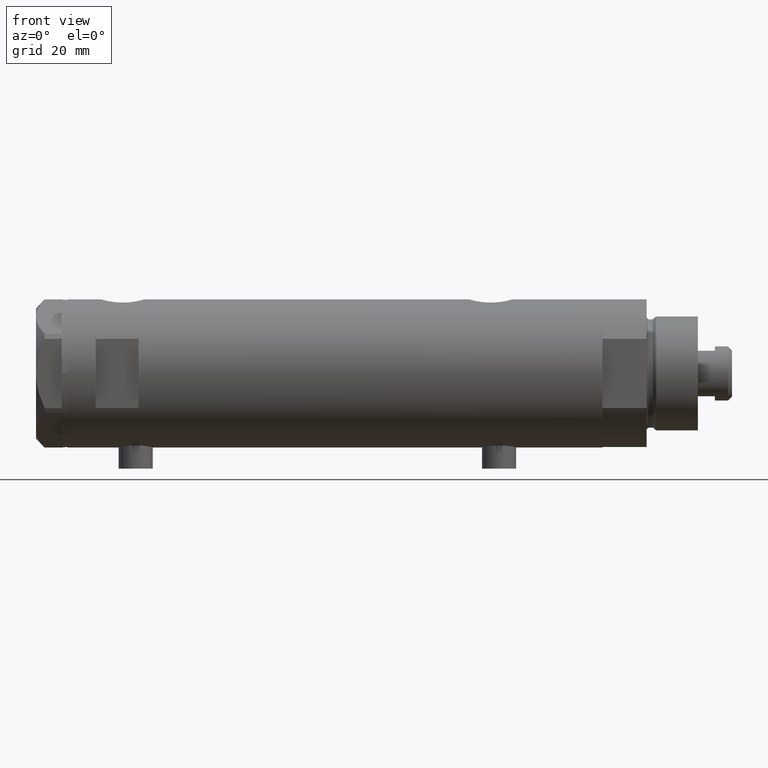
[diagram: clean part render]
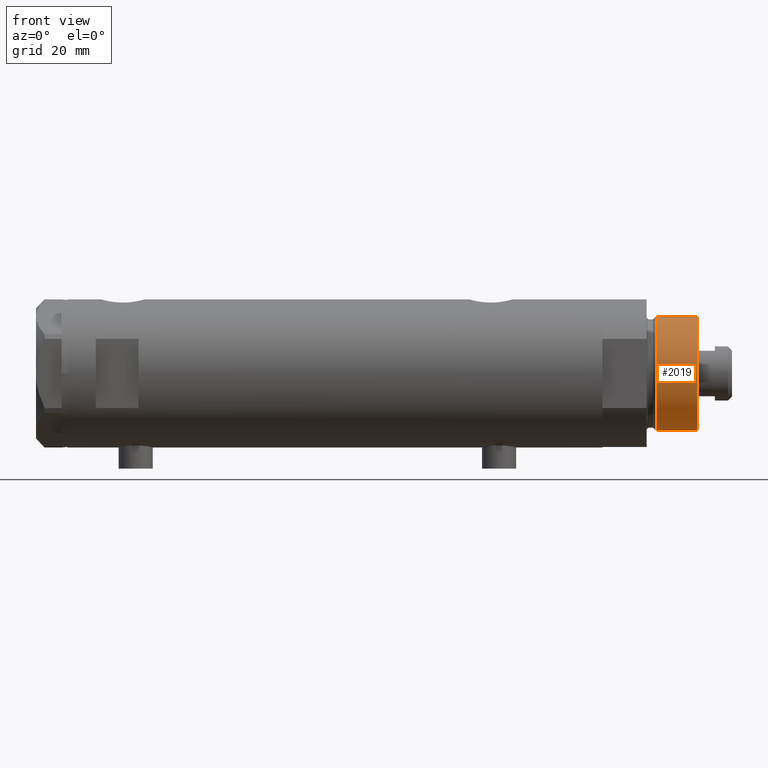
[diagram: same view with one face highlighted and labeled with its STEP entity id]
A machine part, front view. The second image highlights one B-rep face of the part: STEP entity #2019.
In plain terms, the highlighted cylindrical surface (partial cylindrical patch) has radius 20 mm, axis along (-1, -0, 0).
Its self-contained STEP definition (entity closure, byte-faithful):
#27 = LINE ( 'NONE', #2597, #3895 ) ;
#60 = DIRECTION ( 'NONE',  ( -1.000000000000000000, 0.000000000000000000, 0.000000000000000000 ) ) ;
#78 = EDGE_CURVE ( 'NONE', #1529, #2209, #4017, .T. ) ;
#393 = EDGE_LOOP ( 'NONE', ( #3564, #3123, #2365, #2671 ) ) ;
#591 = CARTESIAN_POINT ( 'NONE',  ( -19.99999999999999645, 0.000000000000000000, 18.87384048104053846 ) ) ;
#694 = DIRECTION ( 'NONE',  ( 0.000000000000000000, 0.000000000000000000, 1.000000000000000000 ) ) ;
#720 = VERTEX_POINT ( 'NONE', #591 ) ;
#760 = CARTESIAN_POINT ( 'NONE',  ( 0.000000000000000000, 0.000000000000000000, 33.50000000000000000 ) ) ;
#777 = CARTESIAN_POINT ( 'NONE',  ( 0.000000000000000000, 0.000000000000000000, 33.50000000000000000 ) ) ;
#1529 = VERTEX_POINT ( 'NONE', #3708 ) ;
#1898 = DIRECTION ( 'NONE',  ( -0.000000000000000000, -0.000000000000000000, -1.000000000000000000 ) ) ;
#1921 = AXIS2_PLACEMENT_3D ( 'NONE', #4781, #4869, #4849 ) ;
#2019 = ADVANCED_FACE ( 'NONE', ( #2996 ), #2664, .T. ) ;
#2209 = VERTEX_POINT ( 'NONE', #3461 ) ;
#2360 = EDGE_CURVE ( 'NONE', #2640, #720, #27, .T. ) ;
#2365 = ORIENTED_EDGE ( 'NONE', *, *, #2360, .T. ) ;
#2597 = CARTESIAN_POINT ( 'NONE',  ( -19.99999999999999645, 0.000000000000000000, 33.50000000000000000 ) ) ;
#2640 = VERTEX_POINT ( 'NONE', #3752 ) ;
#2664 = CYLINDRICAL_SURFACE ( 'NONE', #4350, 19.99999999999999645 ) ;
#2671 = ORIENTED_EDGE ( 'NONE', *, *, #3216, .T. ) ;
#2889 = DIRECTION ( 'NONE',  ( -0.000000000000000000, -0.000000000000000000, -1.000000000000000000 ) ) ;
#2969 = DIRECTION ( 'NONE',  ( -0.000000000000000000, -0.000000000000000000, -1.000000000000000000 ) ) ;
#2996 = FACE_OUTER_BOUND ( 'NONE', #393, .T. ) ;
#3074 = VECTOR ( 'NONE', #2889, 1000.000000000000000 ) ;
#3123 = ORIENTED_EDGE ( 'NONE', *, *, #4623, .F. ) ;
#3216 = EDGE_CURVE ( 'NONE', #720, #2209, #3252, .T. ) ;
#3252 = CIRCLE ( 'NONE', #1921, 19.99999999999999645 ) ;
#3346 = AXIS2_PLACEMENT_3D ( 'NONE', #760, #694, #4456 ) ;
#3461 = CARTESIAN_POINT ( 'NONE',  ( 19.99999999999999645, 2.449293598294706119E-15, 18.87384048104053846 ) ) ;
#3564 = ORIENTED_EDGE ( 'NONE', *, *, #78, .F. ) ;
#3708 = CARTESIAN_POINT ( 'NONE',  ( 19.99999999999999645, 2.449293598294706119E-15, 33.50000000000000000 ) ) ;
#3752 = CARTESIAN_POINT ( 'NONE',  ( -19.99999999999999645, 0.000000000000000000, 33.50000000000000000 ) ) ;
#3895 = VECTOR ( 'NONE', #2969, 1000.000000000000000 ) ;
#4017 = LINE ( 'NONE', #4352, #3074 ) ;
#4350 = AXIS2_PLACEMENT_3D ( 'NONE', #777, #1898, #60 ) ;
#4352 = CARTESIAN_POINT ( 'NONE',  ( 19.99999999999999645, 2.449293598294706119E-15, 33.50000000000000000 ) ) ;
#4456 = DIRECTION ( 'NONE',  ( 1.000000000000000000, 0.000000000000000000, 0.000000000000000000 ) ) ;
#4623 = EDGE_CURVE ( 'NONE', #2640, #1529, #4844, .T. ) ;
#4781 = CARTESIAN_POINT ( 'NONE',  ( 0.000000000000000000, 0.000000000000000000, 18.87384048104053846 ) ) ;
#4844 = CIRCLE ( 'NONE', #3346, 19.99999999999999645 ) ;
#4849 = DIRECTION ( 'NONE',  ( 1.000000000000000000, 0.000000000000000000, 0.000000000000000000 ) ) ;
#4869 = DIRECTION ( 'NONE',  ( -0.000000000000000000, -0.000000000000000000, 1.000000000000000000 ) ) ;